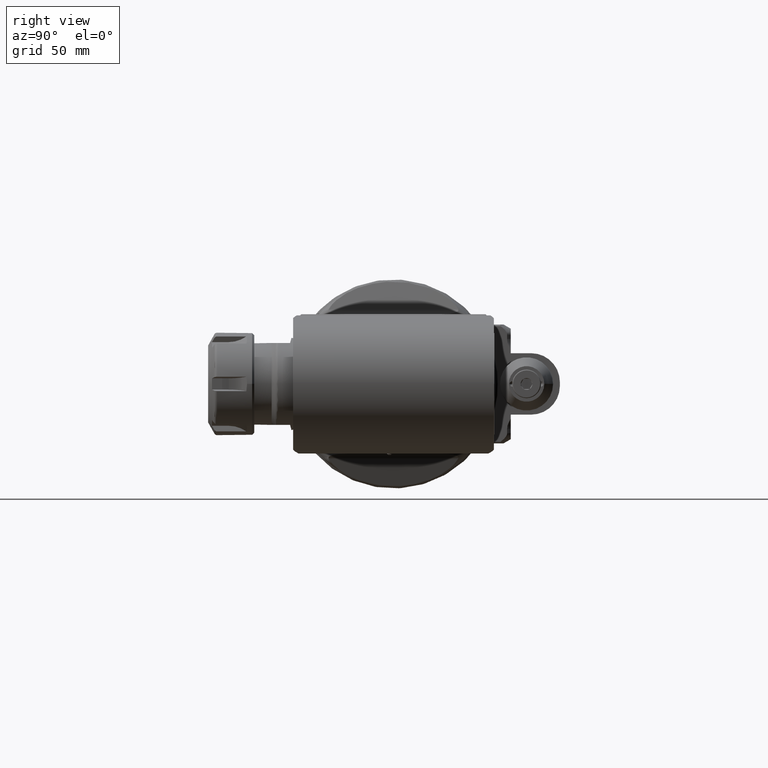
[diagram: clean part render]
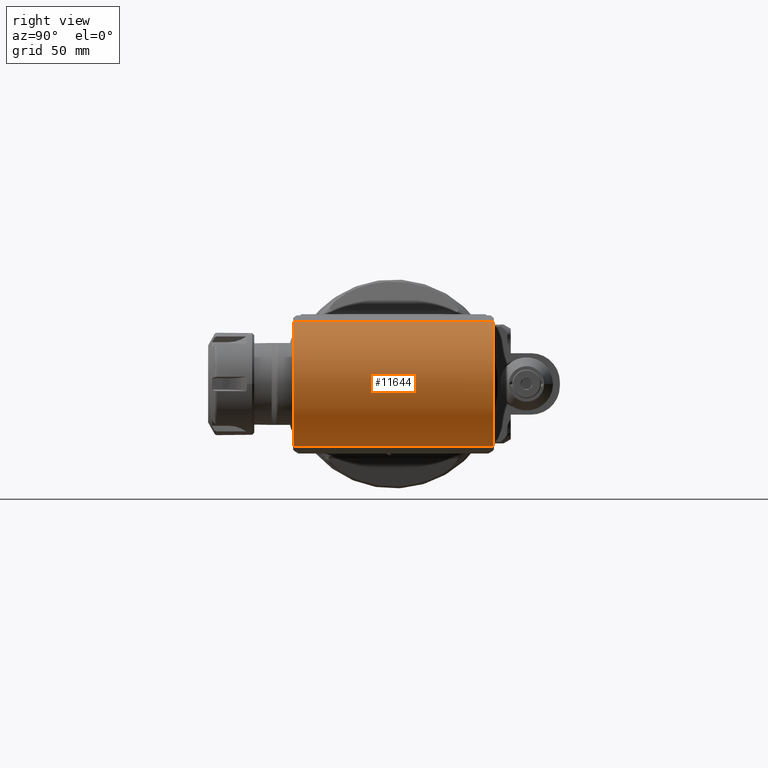
[diagram: same view with one face highlighted and labeled with its STEP entity id]
A machine part, right view. The second image highlights one B-rep face of the part: STEP entity #11644.
In plain terms, the highlighted cylindrical surface (partial cylindrical patch) has radius 31 mm, axis along (-0, 1, 0).
Its self-contained STEP definition (entity closure, byte-faithful):
#886=LINE('',#16654,#1742);
#889=LINE('',#16722,#1745);
#1742=VECTOR('',#13506,98.);
#1745=VECTOR('',#13525,98.);
#2577=CYLINDRICAL_SURFACE('',#12374,31.);
#2745=FACE_OUTER_BOUND('',#3399,.T.);
#3399=EDGE_LOOP('',(#7792,#7793,#7794,#7795));
#4125=CIRCLE('',#12372,31.);
#4127=CIRCLE('',#12375,31.);
#4622=VERTEX_POINT('',#16651);
#4623=VERTEX_POINT('',#16653);
#4628=VERTEX_POINT('',#16679);
#4639=VERTEX_POINT('',#16721);
#5907=EDGE_CURVE('',#4623,#4622,#886,.T.);
#5915=EDGE_CURVE('',#4623,#4628,#4125,.T.);
#5927=EDGE_CURVE('',#4639,#4628,#889,.T.);
#5928=EDGE_CURVE('',#4639,#4622,#4127,.T.);
#7792=ORIENTED_EDGE('',*,*,#5927,.T.);
#7793=ORIENTED_EDGE('',*,*,#5915,.F.);
#7794=ORIENTED_EDGE('',*,*,#5907,.T.);
#7795=ORIENTED_EDGE('',*,*,#5928,.F.);
#11644=ADVANCED_FACE('',(#2745),#2577,.T.);
#12372=AXIS2_PLACEMENT_3D('',#16680,#13518,#13519);
#12374=AXIS2_PLACEMENT_3D('',#16720,#13523,#13524);
#12375=AXIS2_PLACEMENT_3D('',#16723,#13526,#13527);
#13506=DIRECTION('',(0.,1.,0.));
#13518=DIRECTION('center_axis',(0.,-1.,0.));
#13519=DIRECTION('ref_axis',(0.207911690816993,0.,-0.978147600733968));
#13523=DIRECTION('center_axis',(0.,1.,0.));
#13524=DIRECTION('ref_axis',(1.,0.,0.));
#13525=DIRECTION('',(0.,-1.,0.));
#13526=DIRECTION('center_axis',(0.,1.,0.));
#13527=DIRECTION('ref_axis',(0.207911690816993,0.,0.978147600733968));
#16651=CARTESIAN_POINT('',(284.5083594153,49.,-30.32257562275));
#16653=CARTESIAN_POINT('',(284.5083594153,-49.,-30.32257562275));
#16654=CARTESIAN_POINT('',(284.5083594153,-49.,-30.32257562275));
#16679=CARTESIAN_POINT('',(284.5083594153,-49.,30.32257562275));
#16680=CARTESIAN_POINT('Origin',(278.063097,-49.,0.));
#16720=CARTESIAN_POINT('Origin',(278.063097,49.,0.));
#16721=CARTESIAN_POINT('',(284.5083594153,49.,30.32257562275));
#16722=CARTESIAN_POINT('',(284.5083594153,49.,30.32257562275));
#16723=CARTESIAN_POINT('Origin',(278.063097,49.,0.));